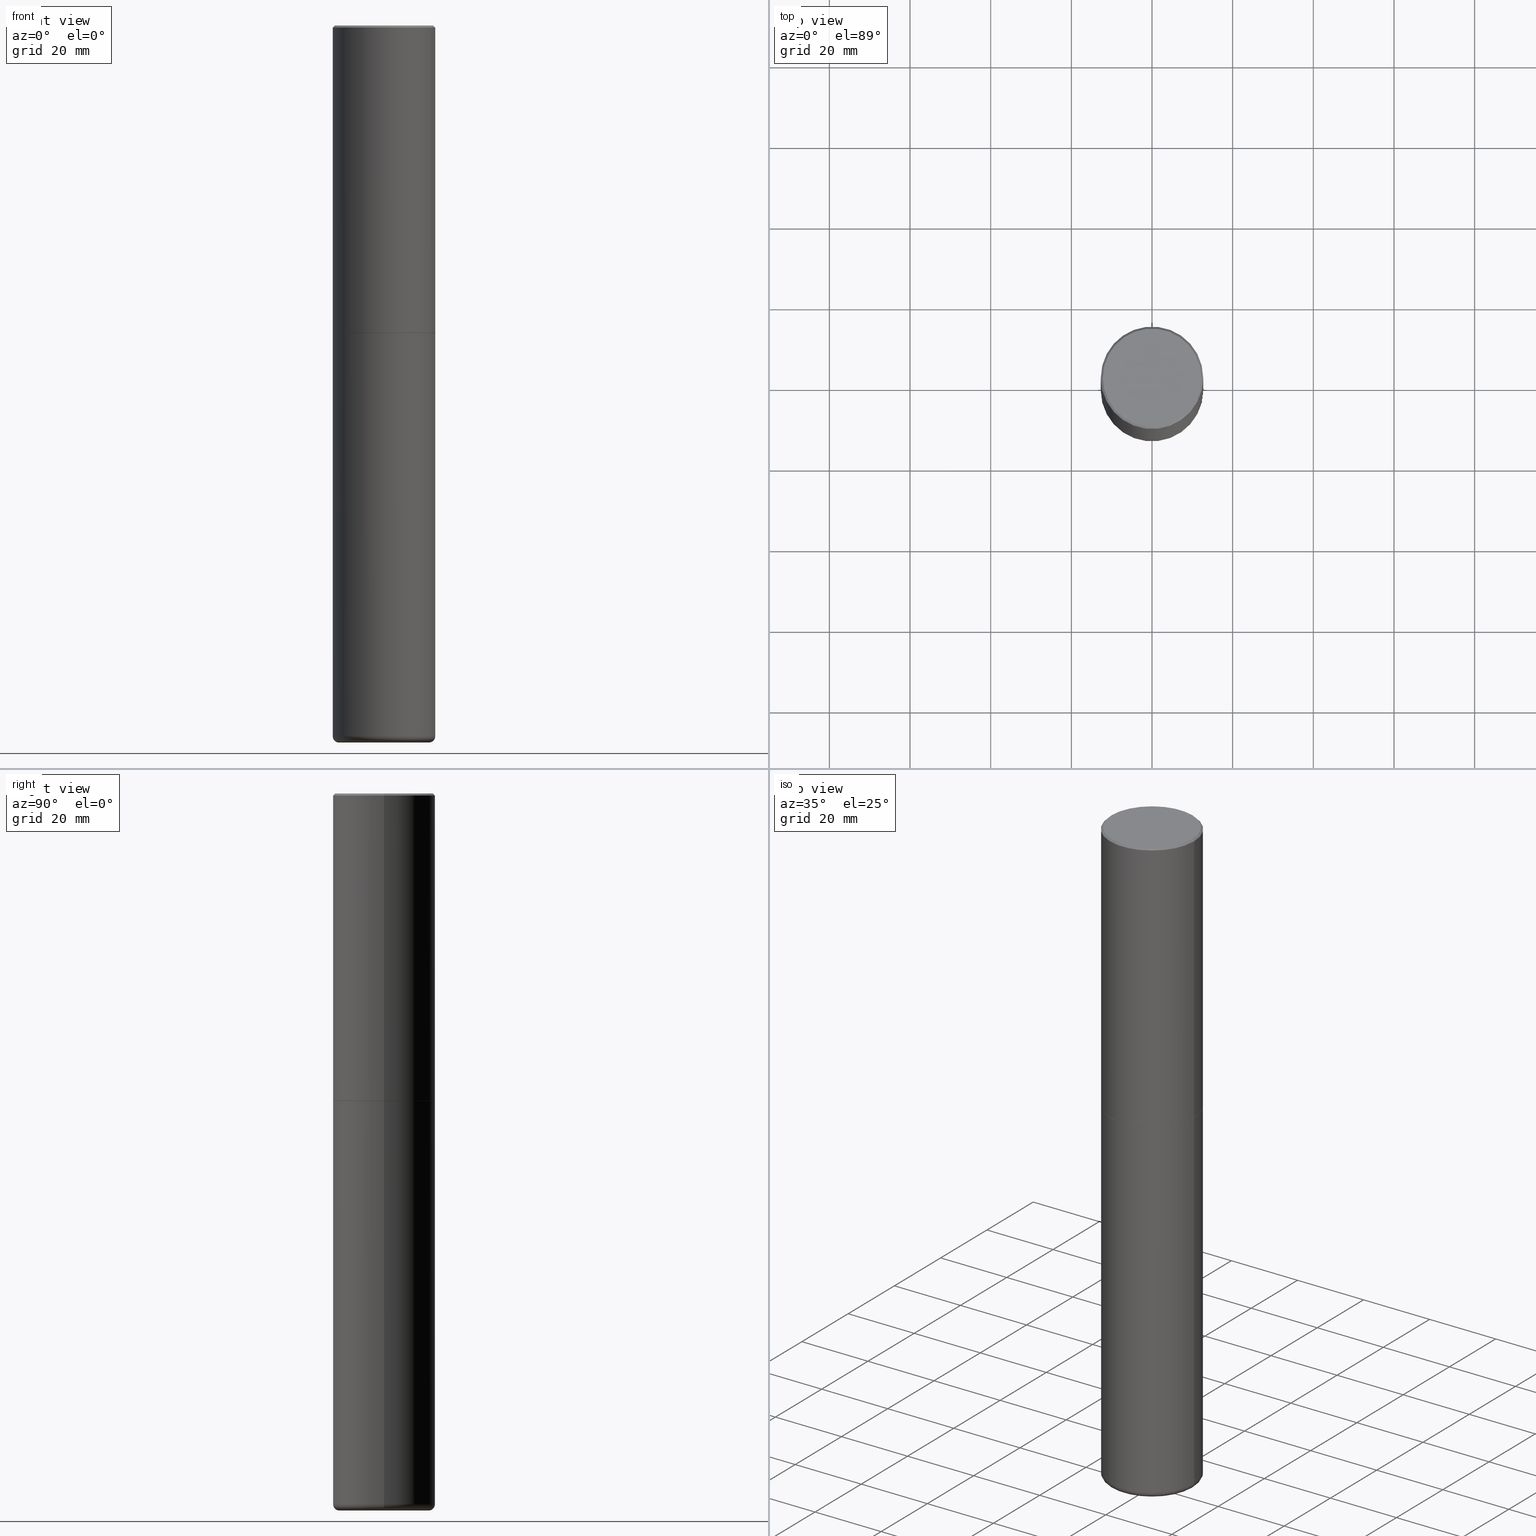
[diagram: canonical four-view strip — front | top / right | iso, engineering-drawing reading convention]
A machine part, canonical four-view strip (front | top / right | iso — engineering-drawing reading convention). The complete STEP part file that produces these views, byte-faithful:
ISO-10303-21;
HEADER;
FILE_DESCRIPTION (( 'STEP AP203' ),
    '1' );
FILE_NAME ('77332.STEP',
    '2024-03-06T17:09:13',
    ( '' ),
    ( '' ),
    'SwSTEP 2.0',
    'SolidWorks 2023',
    '' );
FILE_SCHEMA (( 'CONFIG_CONTROL_DESIGN' ));
ENDSEC;

DATA;
#1 = CARTESIAN_POINT ( 'NONE',  ( 0.000000000000000000, 0.000000000000000000, 0.000000000000000000 ) ) ;
#2 = CARTESIAN_POINT ( 'NONE',  ( 0.4400000000000000022, -2.730338406975338551E-14, -6.939999999999999503 ) ) ;
#3 = DIRECTION ( 'NONE',  ( -2.445468806185136597E-29, 3.491481338843145583E-15, 1.000000000000000000 ) ) ;
#4 = MANIFOLD_SOLID_BREP ( 'Body-Move/Copy2[2]', #98 ) ;
#5 = AXIS2_PLACEMENT_3D ( 'NONE', #243, #178, #279 ) ;
#6 = DIRECTION ( 'NONE',  ( 1.000000000000000000, -6.982962677686269077E-15, 0.000000000000000000 ) ) ;
#7 = LINE ( 'NONE', #264, #241 ) ;
#8 = PERSON_AND_ORGANIZATION ( #346, #357 ) ;
#9 = EDGE_CURVE ( 'NONE', #353, #107, #7, .T. ) ;
#10 = ORIENTED_EDGE ( 'NONE', *, *, #332, .T. ) ;
#11 = MANIFOLD_SOLID_BREP ( 'Body-Move/Copy2[1]', #207 ) ;
#12 = CARTESIAN_POINT ( 'NONE',  ( -0.5000000000000002220, -2.067816681277092470E-14, -6.939999999999999503 ) ) ;
#13 = ORIENTED_EDGE ( 'NONE', *, *, #153, .T. ) ;
#14 = CIRCLE ( 'NONE', #28, 0.5000000000000001110 ) ;
#15 = AXIS2_PLACEMENT_3D ( 'NONE', #329, #296, #230 ) ;
#16 = DIRECTION ( 'NONE',  ( 1.000000000000000000, -6.982962677686265922E-15, 0.000000000000000000 ) ) ;
#17 = ORIENTED_EDGE ( 'NONE', *, *, #292, .T. ) ;
#18 = APPROVAL_DATE_TIME ( #210, #125 ) ;
#19 = ORIENTED_EDGE ( 'NONE', *, *, #332, .F. ) ;
#20 = APPROVAL_STATUS ( 'not_yet_approved' ) ;
#21 = CIRCLE ( 'NONE', #71, 0.5000000000000000000 ) ;
#22 = APPROVAL_DATE_TIME ( #306, #186 ) ;
#23 = CIRCLE ( 'NONE', #326, 0.4400000000000000022 ) ;
#24 = DIRECTION ( 'NONE',  ( 1.000000000000000000, -6.982962677686269077E-15, 0.000000000000000000 ) ) ;
#25 = PLANE ( 'NONE',  #356 ) ;
#26 = ADVANCED_FACE ( 'NONE', ( #395 ), #373, .T. ) ;
#27 = DIRECTION ( 'NONE',  ( 1.000000000000000000, -6.982962677686266711E-15, 4.876176775795935793E-29 ) ) ;
#28 = AXIS2_PLACEMENT_3D ( 'NONE', #211, #408, #248 ) ;
#29 = AXIS2_PLACEMENT_3D ( 'NONE', #1, #156, #347 ) ;
#30 = LINE ( 'NONE', #161, #276 ) ;
#31 = CARTESIAN_POINT ( 'NONE',  ( 7.336406418555408669E-29, -1.047444401652943478E-14, -2.999999999999999556 ) ) ;
#32 = EDGE_LOOP ( 'NONE', ( #236, #17, #322, #328 ) ) ;
#33 = CARTESIAN_POINT ( 'NONE',  ( 0.4989999999999999991, -1.395894239269488369E-14, -2.999999999999999556 ) ) ;
#34 = CIRCLE ( 'NONE', #320, 0.5000000000000000000 ) ;
#35 = CARTESIAN_POINT ( 'NONE',  ( -0.5000000000000003331, -1.717677402183223054E-15, -2.999000000000000110 ) ) ;
#36 = DIRECTION ( 'NONE',  ( -2.445468806185136597E-29, 3.491481338843145583E-15, 1.000000000000000000 ) ) ;
#37 = ORIENTED_EDGE ( 'NONE', *, *, #9, .T. ) ;
#38 = CIRCLE ( 'NONE', #146, 0.06000000000000051820 ) ;
#39 = ADVANCED_FACE ( 'NONE', ( #307 ), #311, .T. ) ;
#40 = DIRECTION ( 'NONE',  ( 1.000000000000000000, -6.982962677686269077E-15, 0.000000000000000000 ) ) ;
#41 = ORIENTED_EDGE ( 'NONE', *, *, #61, .T. ) ;
#42 = DIRECTION ( 'NONE',  ( -2.445468806185136877E-29, 3.491481338843145188E-15, 1.000000000000000000 ) ) ;
#43 = CIRCLE ( 'NONE', #191, 0.5000000000000003331 ) ;
#44 = PERSON_AND_ORGANIZATION ( #346, #357 ) ;
#45 = ORIENTED_EDGE ( 'NONE', *, *, #202, .F. ) ;
#46 = PERSON_AND_ORGANIZATION ( #346, #357 ) ;
#47 = CARTESIAN_POINT ( 'NONE',  ( -2.922783960138615261E-45, 4.172960877065252270E-31, 1.195183497228115035E-16 ) ) ;
#48 = PERSON_AND_ORGANIZATION ( #346, #357 ) ;
#49 = APPROVAL_ROLE ( '' ) ;
#50 = CC_DESIGN_PERSON_AND_ORGANIZATION_ASSIGNMENT ( #48, #108, ( #254 ) ) ;
#51 = CONICAL_SURFACE ( 'NONE', #162, 0.5000000000000001110, 0.7853981633974458365 ) ;
#52 = CARTESIAN_POINT ( 'NONE',  ( 0.5000000000000002220, -3.491481338843134933E-15, 2.438088387897969017E-29 ) ) ;
#53 = DIRECTION ( 'NONE',  ( 1.000000000000000000, -6.982962677686266711E-15, 4.876176775795935793E-29 ) ) ;
#54 = CARTESIAN_POINT ( 'NONE',  ( 4.890937612370299433E-31, -6.982962677686328587E-17, -0.02000000000000010797 ) ) ;
#55 = AXIS2_PLACEMENT_3D ( 'NONE', #102, #201, #109 ) ;
#56 = CC_DESIGN_APPROVAL ( #125, ( #254 ) ) ;
#57 = CARTESIAN_POINT ( 'NONE',  ( 0.5000000000000002220, -2.772236183041456530E-14, -6.939999999999999503 ) ) ;
#58 = PRODUCT_DEFINITION_SHAPE ( 'NONE', 'NONE',  #254 ) ;
#59 = ORIENTED_EDGE ( 'NONE', *, *, #202, .T. ) ;
#60 = CARTESIAN_POINT ( 'NONE',  ( -0.5000000000000001110, 3.421651712066270452E-15, -0.02000000000000010797 ) ) ;
#61 = EDGE_CURVE ( 'NONE', #131, #261, #177, .T. ) ;
#62 = AXIS2_PLACEMENT_3D ( 'NONE', #111, #142, #53 ) ;
#63 = ORIENTED_EDGE ( 'NONE', *, *, #68, .T. ) ;
#64 = CARTESIAN_POINT ( 'NONE',  ( 7.336406418555408669E-29, -1.047444401652943478E-14, -2.999999999999999556 ) ) ;
#65 = VERTEX_POINT ( 'NONE', #145 ) ;
#66 = CARTESIAN_POINT ( 'NONE',  ( 1.711828164329595618E-28, -2.444036937190202184E-14, -7.000000000000000888 ) ) ;
#67 = EDGE_LOOP ( 'NONE', ( #231, #365 ) ) ;
#68 = EDGE_CURVE ( 'NONE', #192, #131, #84, .T. ) ;
#69 = ORIENTED_EDGE ( 'NONE', *, *, #280, .F. ) ;
#70 = AXIS2_PLACEMENT_3D ( 'NONE', #412, #240, #80 ) ;
#71 = AXIS2_PLACEMENT_3D ( 'NONE', #127, #3, #318 ) ;
#72 = PERSON_AND_ORGANIZATION_ROLE ( 'design_owner' ) ;
#73 = ORIENTED_EDGE ( 'NONE', *, *, #280, .T. ) ;
#74 = DIRECTION ( 'NONE',  ( -2.445468806185136597E-29, 3.491481338843145583E-15, 1.000000000000000000 ) ) ;
#75 = ORIENTED_EDGE ( 'NONE', *, *, #136, .F. ) ;
#76 = ADVANCED_FACE ( 'NONE', ( #283 ), #86, .F. ) ;
#77 = ORIENTED_EDGE ( 'NONE', *, *, #292, .F. ) ;
#78 = CIRCLE ( 'NONE', #5, 0.5000000000000001110 ) ;
#79 = COORDINATED_UNIVERSAL_TIME_OFFSET ( 5, 0, .BEHIND. ) ;
#80 = DIRECTION ( 'NONE',  ( 1.000000000000000000, -6.982962677686269077E-15, 0.000000000000000000 ) ) ;
#81 = COORDINATED_UNIVERSAL_TIME_OFFSET ( 5, 0, .BEHIND. ) ;
#82 = FACE_OUTER_BOUND ( 'NONE', #257, .T. ) ;
#83 = ADVANCED_FACE ( 'NONE', ( #82 ), #160, .T. ) ;
#84 = CIRCLE ( 'NONE', #70, 0.4989999999999999991 ) ;
#85 = AXIS2_PLACEMENT_3D ( 'NONE', #403, #165, #362 ) ;
#86 = PLANE ( 'NONE',  #407 ) ;
#87 = CARTESIAN_POINT ( 'NONE',  ( 7.333960949749225308E-29, -1.047095253519059177E-14, -2.999000000000000110 ) ) ;
#88 = ORIENTED_EDGE ( 'NONE', *, *, #158, .T. ) ;
#89 = DIRECTION ( 'NONE',  ( -2.445468806185136597E-29, 3.491481338843145583E-15, 1.000000000000000000 ) ) ;
#90 = AXIS2_PLACEMENT_3D ( 'NONE', #219, #383, #123 ) ;
#91 = VECTOR ( 'NONE', #189, 39.37007874015748143 ) ;
#92 = ORIENTED_EDGE ( 'NONE', *, *, #153, .F. ) ;
#93 = FACE_OUTER_BOUND ( 'NONE', #233, .T. ) ;
#94 = ORIENTED_EDGE ( 'NONE', *, *, #359, .T. ) ;
#95 = EDGE_CURVE ( 'NONE', #65, #269, #343, .T. ) ;
#96 = CARTESIAN_POINT ( 'NONE',  ( 1.711828164329595618E-28, -2.444036937190202184E-14, -7.000000000000000888 ) ) ;
#97 = FACE_OUTER_BOUND ( 'NONE', #355, .T. ) ;
#98 = CLOSED_SHELL ( 'NONE', ( #366, #245, #323, #26, #221, #83, #338, #176 ) ) ;
#99 = AXIS2_PLACEMENT_3D ( 'NONE', #286, #163, #126 ) ;
#100 = DIRECTION ( 'NONE',  ( 1.000000000000000000, -6.982962677686266711E-15, 4.874852205035277589E-29 ) ) ;
#101 = CARTESIAN_POINT ( 'NONE',  ( -2.922783960138615261E-45, 4.172960877065252270E-31, 1.195183497228115035E-16 ) ) ;
#102 = CARTESIAN_POINT ( 'NONE',  ( 4.890937612370299433E-31, -6.982962677686328587E-17, -0.02000000000000010797 ) ) ;
#103 = APPLICATION_PROTOCOL_DEFINITION ( 'international standard', 'config_control_design', 1994, #255 ) ;
#104 = ORIENTED_EDGE ( 'NONE', *, *, #384, .F. ) ;
#105 = DESIGN_CONTEXT ( 'detailed design', #310, 'design' ) ;
#106 = CARTESIAN_POINT ( 'NONE',  ( 0.5000000000000001110, -3.500078625662629868E-15, -0.02000000000000010797 ) ) ;
#107 = VERTEX_POINT ( 'NONE', #151 ) ;
#108 = PERSON_AND_ORGANIZATION_ROLE ( 'creator' ) ;
#109 = DIRECTION ( 'NONE',  ( -1.000000000000000000, 6.982962677686265922E-15, 0.000000000000000000 ) ) ;
#110 = AXIS2_PLACEMENT_3D ( 'NONE', #101, #130, #100 ) ;
#111 = CARTESIAN_POINT ( 'NONE',  ( 0.000000000000000000, 0.000000000000000000, 0.000000000000000000 ) ) ;
#112 = CC_DESIGN_PERSON_AND_ORGANIZATION_ASSIGNMENT ( #46, #341, ( #385 ) ) ;
#113 = SECURITY_CLASSIFICATION_LEVEL ( 'unclassified' ) ;
#114 = CARTESIAN_POINT ( 'NONE',  ( 0.4989999999999999991, -1.395894239269488369E-14, -2.999999999999999556 ) ) ;
#115 = PERSON_AND_ORGANIZATION_ROLE ( 'creator' ) ;
#116 = DIRECTION ( 'NONE',  ( -2.445468806185136597E-29, 3.491481338843145583E-15, 1.000000000000000000 ) ) ;
#117 = AXIS2_PLACEMENT_3D ( 'NONE', #396, #259, #6 ) ;
#118 = DIRECTION ( 'NONE',  ( 1.000000000000000000, -6.982962677686266711E-15, 4.874852205035277589E-29 ) ) ;
#119 = PRODUCT_RELATED_PRODUCT_CATEGORY ( 'detail', '', ( #410 ) ) ;
#120 = CYLINDRICAL_SURFACE ( 'NONE', #90, 0.5000000000000000000 ) ;
#121 = CARTESIAN_POINT ( 'NONE',  ( 1.697155351492484915E-28, -2.423088049157142879E-14, -6.939999999999999503 ) ) ;
#122 = EDGE_LOOP ( 'NONE', ( #63, #41, #204, #325 ) ) ;
#123 = DIRECTION ( 'NONE',  ( 1.000000000000000000, -6.982962677686266711E-15, 4.876176775795935793E-29 ) ) ;
#124 = CIRCLE ( 'NONE', #297, 0.5000000000000003331 ) ;
#125 = APPROVAL ( #20, 'UNSPECIFIED' ) ;
#126 = DIRECTION ( 'NONE',  ( 1.000000000000000000, -6.982962677686270655E-15, 4.883557194083114583E-29 ) ) ;
#127 = CARTESIAN_POINT ( 'NONE',  ( 7.336406418555408669E-29, -1.047444401652943478E-14, -2.999999999999999556 ) ) ;
#128 = APPROVAL ( #174, 'UNSPECIFIED' ) ;
#129 = CONICAL_SURFACE ( 'NONE', #184, 0.4989999999999999991, 0.7853981633977213939 ) ;
#130 = DIRECTION ( 'NONE',  ( -2.445468806185136597E-29, 3.491481338843145583E-15, 1.000000000000000000 ) ) ;
#131 = VERTEX_POINT ( 'NONE', #274 ) ;
#132 = ORIENTED_EDGE ( 'NONE', *, *, #158, .F. ) ;
#133 = CARTESIAN_POINT ( 'NONE',  ( 7.333960949749225308E-29, -1.047095253519059177E-14, -2.999000000000000110 ) ) ;
#134 = EDGE_LOOP ( 'NONE', ( #10, #37, #69, #298 ) ) ;
#135 = AXIS2_PLACEMENT_3D ( 'NONE', #340, #116, #24 ) ;
#136 = EDGE_CURVE ( 'NONE', #235, #393, #14, .T. ) ;
#137 =( GEOMETRIC_REPRESENTATION_CONTEXT ( 3 ) GLOBAL_UNCERTAINTY_ASSIGNED_CONTEXT ( ( #138 ) ) GLOBAL_UNIT_ASSIGNED_CONTEXT ( ( #331, #237, #369 ) ) REPRESENTATION_CONTEXT ( 'NONE', 'WORKASPACE' ) );
#138 = UNCERTAINTY_MEASURE_WITH_UNIT (LENGTH_MEASURE( 1.000000000000000082E-05 ), #331, 'distance_accuracy_value', 'NONE');
#139 = CARTESIAN_POINT ( 'NONE',  ( 0.4400000000000000022, -2.751287295008397541E-14, -7.000000000000000888 ) ) ;
#140 = ORIENTED_EDGE ( 'NONE', *, *, #95, .T. ) ;
#141 = COORDINATED_UNIVERSAL_TIME_OFFSET ( 5, 0, .BEHIND. ) ;
#142 = DIRECTION ( 'NONE',  ( -2.445468806185136597E-29, 3.491481338843145583E-15, 1.000000000000000000 ) ) ;
#143 = DATE_TIME_ROLE ( 'creation_date' ) ;
#144 = ADVANCED_FACE ( 'NONE', ( #218 ), #342, .T. ) ;
#145 = CARTESIAN_POINT ( 'NONE',  ( 0.4799999999999999267, -3.396558832296482099E-15, 1.195183497228351200E-16 ) ) ;
#146 = AXIS2_PLACEMENT_3D ( 'NONE', #2, #190, #321 ) ;
#147 = APPROVAL_PERSON_ORGANIZATION ( #215, #128, #212 ) ;
#148 = SHAPE_DEFINITION_REPRESENTATION ( #58, #371 ) ;
#149 = CARTESIAN_POINT ( 'NONE',  ( 4.978759091833445139E-29, -4.182485660431097497E-14, -7.000000000000000888 ) ) ;
#150 = PERSON_AND_ORGANIZATION ( #346, #357 ) ;
#151 = CARTESIAN_POINT ( 'NONE',  ( -0.5000000000000000000, -1.379994857524993085E-14, -2.999999999999999556 ) ) ;
#152 = DIRECTION ( 'NONE',  ( -1.000000000000000000, 6.982962677686265922E-15, -4.876176775795935793E-29 ) ) ;
#153 = EDGE_CURVE ( 'NONE', #361, #393, #312, .T. ) ;
#154 = CC_DESIGN_APPROVAL ( #186, ( #385 ) ) ;
#155 = LINE ( 'NONE', #352, #91 ) ;
#156 = DIRECTION ( 'NONE',  ( -2.445468806185136597E-29, 3.491481338843145583E-15, 1.000000000000000000 ) ) ;
#157 = DIRECTION ( 'NONE',  ( -2.438088387897960049E-29, 3.491481338843145188E-15, 1.000000000000000000 ) ) ;
#158 = EDGE_CURVE ( 'NONE', #353, #305, #78, .T. ) ;
#159 = ORIENTED_EDGE ( 'NONE', *, *, #392, .F. ) ;
#160 = CONICAL_SURFACE ( 'NONE', #135, 0.4989999999999999991, 0.7853981633977213939 ) ;
#161 = CARTESIAN_POINT ( 'NONE',  ( 0.5000000000000000000, -3.491481338843133355E-15, 2.438088387897967896E-29 ) ) ;
#162 = AXIS2_PLACEMENT_3D ( 'NONE', #54, #416, #387 ) ;
#163 = DIRECTION ( 'NONE',  ( -2.445468806185136597E-29, 3.491481338843145583E-15, 1.000000000000000000 ) ) ;
#164 = DIMENSIONAL_EXPONENTS ( 1.000000000000000000, 0.000000000000000000, 0.000000000000000000, 0.000000000000000000, 0.000000000000000000, 0.000000000000000000, 0.000000000000000000 ) ;
#165 = DIRECTION ( 'NONE',  ( -2.445468806185136597E-29, 3.491481338843145583E-15, 1.000000000000000000 ) ) ;
#166 = ORIENTED_EDGE ( 'NONE', *, *, #234, .F. ) ;
#167 = AXIS2_PLACEMENT_3D ( 'NONE', #121, #89, #187 ) ;
#168 = CARTESIAN_POINT ( 'NONE',  ( 0.000000000000000000, 0.000000000000000000, 0.000000000000000000 ) ) ;
#169 = EDGE_LOOP ( 'NONE', ( #370, #88, #288, #166 ) ) ;
#170 = CARTESIAN_POINT ( 'NONE',  ( -0.5000000000000002220, 3.552713678800502507E-15, -2.459467545127454012E-29 ) ) ;
#171 = EDGE_CURVE ( 'NONE', #192, #361, #409, .T. ) ;
#172 = VERTEX_POINT ( 'NONE', #247 ) ;
#173 = LOCAL_TIME ( 12, 9, 13.00000000000000000, #81 ) ;
#174 = APPROVAL_STATUS ( 'not_yet_approved' ) ;
#175 = VERTEX_POINT ( 'NONE', #181 ) ;
#176 = ADVANCED_FACE ( 'NONE', ( #309 ), #25, .F. ) ;
#177 = LINE ( 'NONE', #377, #213 ) ;
#178 = DIRECTION ( 'NONE',  ( -2.445468806185136597E-29, 3.491481338843145583E-15, 1.000000000000000000 ) ) ;
#179 = AXIS2_PLACEMENT_3D ( 'NONE', #31, #157, #289 ) ;
#180 = DATE_AND_TIME ( #246, #200 ) ;
#181 = CARTESIAN_POINT ( 'NONE',  ( -0.4400000000000000022, -2.099607407366424990E-14, -7.000000000000000888 ) ) ;
#182 = CC_DESIGN_PERSON_AND_ORGANIZATION_ASSIGNMENT ( #150, #115, ( #385 ) ) ;
#183 = DIRECTION ( 'NONE',  ( -2.445468806185136877E-29, 3.491481338843145188E-15, 1.000000000000000000 ) ) ;
#184 = AXIS2_PLACEMENT_3D ( 'NONE', #401, #74, #40 ) ;
#185 = FACE_OUTER_BOUND ( 'NONE', #32, .T. ) ;
#186 = APPROVAL ( #273, 'UNSPECIFIED' ) ;
#187 = DIRECTION ( 'NONE',  ( 1.000000000000000000, -6.982962677686269077E-15, 0.000000000000000000 ) ) ;
#188 = EDGE_LOOP ( 'NONE', ( #402, #104 ) ) ;
#189 = DIRECTION ( 'NONE',  ( 0.7071067811865457964, -7.319954787623249734E-15, -0.7071067811865492381 ) ) ;
#190 = DIRECTION ( 'NONE',  ( -6.982962677686266711E-15, -1.000000000000000000, 3.491481338843145583E-15 ) ) ;
#191 = AXIS2_PLACEMENT_3D ( 'NONE', #133, #36, #270 ) ;
#192 = VERTEX_POINT ( 'NONE', #33 ) ;
#193 = DIRECTION ( 'NONE',  ( -2.445468806185136597E-29, 3.491481338843145583E-15, 1.000000000000000000 ) ) ;
#194 = ORIENTED_EDGE ( 'NONE', *, *, #345, .F. ) ;
#195 = CC_DESIGN_PERSON_AND_ORGANIZATION_ASSIGNMENT ( #333, #378, ( #390 ) ) ;
#196 = DIRECTION ( 'NONE',  ( -2.445468806185136597E-29, 3.491481338843145583E-15, 1.000000000000000000 ) ) ;
#197 = ORIENTED_EDGE ( 'NONE', *, *, #234, .T. ) ;
#198 = LENGTH_MEASURE_WITH_UNIT ( LENGTH_MEASURE( 0.02539999999999999897 ), #367 );
#199 = AXIS2_PLACEMENT_3D ( 'NONE', #96, #386, #253 ) ;
#200 = LOCAL_TIME ( 12, 9, 13.00000000000000000, #411 ) ;
#201 = DIRECTION ( 'NONE',  ( 2.445468806185136597E-29, -3.491481338843145583E-15, -1.000000000000000000 ) ) ;
#202 = EDGE_CURVE ( 'NONE', #368, #305, #38, .T. ) ;
#203 = APPLICATION_PROTOCOL_DEFINITION ( 'international standard', 'config_control_design', 1994, #310 ) ;
#204 = ORIENTED_EDGE ( 'NONE', *, *, #272, .F. ) ;
#205 = PERSON_AND_ORGANIZATION ( #346, #357 ) ;
#206 = ORIENTED_EDGE ( 'NONE', *, *, #376, .T. ) ;
#207 = CLOSED_SHELL ( 'NONE', ( #144, #263, #76, #313, #406, #39 ) ) ;
#208 = LOCAL_TIME ( 12, 9, 13.00000000000000000, #339 ) ;
#209 = DATE_TIME_ROLE ( 'classification_date' ) ;
#210 = DATE_AND_TIME ( #344, #173 ) ;
#211 = CARTESIAN_POINT ( 'NONE',  ( 4.890937612370299433E-31, -6.982962677686328587E-17, -0.02000000000000010797 ) ) ;
#212 = APPROVAL_ROLE ( '' ) ;
#213 = VECTOR ( 'NONE', #381, 39.37007874015748143 ) ;
#214 = TOROIDAL_SURFACE ( 'NONE', #99, 0.4400000000000000022, 0.06000000000000051820 ) ;
#215 = PERSON_AND_ORGANIZATION ( #346, #357 ) ;
#216 = EDGE_CURVE ( 'NONE', #368, #175, #295, .T. ) ;
#217 = DIRECTION ( 'NONE',  ( 2.438088387897960049E-29, -3.491481338843145188E-15, -1.000000000000000000 ) ) ;
#218 = FACE_OUTER_BOUND ( 'NONE', #134, .T. ) ;
#219 = CARTESIAN_POINT ( 'NONE',  ( 0.000000000000000000, 0.000000000000000000, 0.000000000000000000 ) ) ;
#220 = ORIENTED_EDGE ( 'NONE', *, *, #136, .T. ) ;
#221 = ADVANCED_FACE ( 'NONE', ( #93 ), #256, .T. ) ;
#222 = AXIS2_PLACEMENT_3D ( 'NONE', #149, #282, #152 ) ;
#223 = FACE_OUTER_BOUND ( 'NONE', #67, .T. ) ;
#224 = ORIENTED_EDGE ( 'NONE', *, *, #61, .F. ) ;
#225 = CARTESIAN_POINT ( 'NONE',  ( -0.5000000000000001110, 3.421651712066270452E-15, -0.02000000000000010797 ) ) ;
#226 = DIRECTION ( 'NONE',  ( -1.000000000000000000, 6.982962677686265922E-15, -4.876176775795935793E-29 ) ) ;
#227 = CYLINDRICAL_SURFACE ( 'NONE', #29, 0.5000000000000002220 ) ;
#228 = EDGE_CURVE ( 'NONE', #269, #235, #354, .T. ) ;
#229 = CIRCLE ( 'NONE', #380, 0.5000000000000001110 ) ;
#230 = DIRECTION ( 'NONE',  ( -1.000000000000000000, 7.105427357600994759E-15, 0.000000000000000000 ) ) ;
#231 = ORIENTED_EDGE ( 'NONE', *, *, #68, .F. ) ;
#232 = FACE_OUTER_BOUND ( 'NONE', #271, .T. ) ;
#233 = EDGE_LOOP ( 'NONE', ( #418, #238, #13, #75 ) ) ;
#234 = EDGE_CURVE ( 'NONE', #107, #172, #21, .T. ) ;
#235 = VERTEX_POINT ( 'NONE', #225 ) ;
#236 = ORIENTED_EDGE ( 'NONE', *, *, #95, .F. ) ;
#237 =( NAMED_UNIT ( * ) PLANE_ANGLE_UNIT ( ) SI_UNIT ( $, .RADIAN. ) );
#238 = ORIENTED_EDGE ( 'NONE', *, *, #392, .T. ) ;
#239 = CALENDAR_DATE ( 2024, 6, 3 ) ;
#240 = DIRECTION ( 'NONE',  ( -2.445468806185136597E-29, 3.491481338843145583E-15, 1.000000000000000000 ) ) ;
#241 = VECTOR ( 'NONE', #42, 39.37007874015748143 ) ;
#242 = AXIS2_PLACEMENT_3D ( 'NONE', #168, #294, #391 ) ;
#243 = CARTESIAN_POINT ( 'NONE',  ( 1.697155351492484915E-28, -2.423088049157142879E-14, -6.939999999999999503 ) ) ;
#244 = DIRECTION ( 'NONE',  ( 0.7071067811867406405, -2.468850131084279700E-15, 0.7071067811863543939 ) ) ;
#245 = ADVANCED_FACE ( 'NONE', ( #97 ), #227, .T. ) ;
#246 = CALENDAR_DATE ( 2024, 6, 3 ) ;
#247 = CARTESIAN_POINT ( 'NONE',  ( 0.5000000000000000000, -1.396592535537256813E-14, -2.999999999999999556 ) ) ;
#248 = DIRECTION ( 'NONE',  ( 1.000000000000000000, -6.982962677686265922E-15, 0.000000000000000000 ) ) ;
#249 = DIRECTION ( 'NONE',  ( -0.7071067811865457964, 2.468850131082238917E-15, -0.7071067811865492381 ) ) ;
#250 = DIRECTION ( 'NONE',  ( -2.445468806185136877E-29, 3.491481338843145188E-15, 1.000000000000000000 ) ) ;
#251 = APPROVAL_PERSON_ORGANIZATION ( #44, #125, #336 ) ;
#252 = DIRECTION ( 'NONE',  ( 2.438088387897960049E-29, -3.491481338843145188E-15, -1.000000000000000000 ) ) ;
#253 = DIRECTION ( 'NONE',  ( 1.000000000000000000, -6.982962677686262766E-15, 0.000000000000000000 ) ) ;
#254 = PRODUCT_DEFINITION ( 'UNKNOWN', '', #385, #105 ) ;
#255 = APPLICATION_CONTEXT ( 'configuration controlled 3d designs of mechanical parts and assemblies' ) ;
#256 = CYLINDRICAL_SURFACE ( 'NONE', #275, 0.5000000000000002220 ) ;
#257 = EDGE_LOOP ( 'NONE', ( #224, #404, #363, #159 ) ) ;
#258 = VECTOR ( 'NONE', #183, 39.37007874015748143 ) ;
#259 = DIRECTION ( 'NONE',  ( -2.445468806185136597E-29, 3.491481338843145583E-15, 1.000000000000000000 ) ) ;
#260 = CIRCLE ( 'NONE', #15, 0.06000000000000051820 ) ;
#261 = VERTEX_POINT ( 'NONE', #35 ) ;
#262 = FACE_OUTER_BOUND ( 'NONE', #122, .T. ) ;
#263 = ADVANCED_FACE ( 'NONE', ( #287 ), #214, .T. ) ;
#264 = CARTESIAN_POINT ( 'NONE',  ( -0.5000000000000000000, 3.552713678800500929E-15, -2.459467545127452891E-29 ) ) ;
#265 = DIRECTION ( 'NONE',  ( -2.445468806185136877E-29, 3.491481338843145188E-15, 1.000000000000000000 ) ) ;
#266 = ORIENTED_EDGE ( 'NONE', *, *, #272, .T. ) ;
#267 = DIRECTION ( 'NONE',  ( 1.000000000000000000, -6.982962677686262766E-15, 0.000000000000000000 ) ) ;
#268 = CIRCLE ( 'NONE', #167, 0.5000000000000001110 ) ;
#269 = VERTEX_POINT ( 'NONE', #389 ) ;
#270 = DIRECTION ( 'NONE',  ( 1.000000000000000000, -6.982962677686265922E-15, 0.000000000000000000 ) ) ;
#271 = EDGE_LOOP ( 'NONE', ( #317, #335, #59, #132 ) ) ;
#272 = EDGE_CURVE ( 'NONE', #361, #261, #124, .T. ) ;
#273 = APPROVAL_STATUS ( 'not_yet_approved' ) ;
#274 = CARTESIAN_POINT ( 'NONE',  ( -0.4989999999999999991, -6.923537310738311664E-15, -2.999999999999999556 ) ) ;
#275 = AXIS2_PLACEMENT_3D ( 'NONE', #315, #382, #27 ) ;
#276 = VECTOR ( 'NONE', #250, 39.37007874015748143 ) ;
#277 = APPROVAL_PERSON_ORGANIZATION ( #205, #186, #49 ) ;
#278 = DATE_AND_TIME ( #239, #284 ) ;
#279 = DIRECTION ( 'NONE',  ( 1.000000000000000000, -6.982962677686269077E-15, 0.000000000000000000 ) ) ;
#280 = EDGE_CURVE ( 'NONE', #172, #107, #34, .T. ) ;
#281 = DATE_AND_TIME ( #405, #208 ) ;
#282 = DIRECTION ( 'NONE',  ( 2.438088387897960049E-29, -3.491481338843145188E-15, -1.000000000000000000 ) ) ;
#283 = FACE_OUTER_BOUND ( 'NONE', #303, .T. ) ;
#284 = LOCAL_TIME ( 12, 9, 13.00000000000000000, #141 ) ;
#285 = CC_DESIGN_DATE_AND_TIME_ASSIGNMENT ( #278, #143, ( #254 ) ) ;
#286 = CARTESIAN_POINT ( 'NONE',  ( 1.697155351492484915E-28, -2.423088049157142879E-14, -6.939999999999999503 ) ) ;
#287 = FACE_OUTER_BOUND ( 'NONE', #330, .T. ) ;
#288 = ORIENTED_EDGE ( 'NONE', *, *, #304, .T. ) ;
#289 = DIRECTION ( 'NONE',  ( 1.000000000000000000, -6.982962677686265922E-15, 4.876176775795935793E-29 ) ) ;
#290 = ORIENTED_EDGE ( 'NONE', *, *, #351, .F. ) ;
#291 = FACE_OUTER_BOUND ( 'NONE', #169, .T. ) ;
#292 = EDGE_CURVE ( 'NONE', #65, #393, #155, .T. ) ;
#293 = DIRECTION ( 'NONE',  ( -2.445468806185136597E-29, 3.491481338843145583E-15, 1.000000000000000000 ) ) ;
#294 = DIRECTION ( 'NONE',  ( 0.000000000000000000, 0.000000000000000000, 1.000000000000000000 ) ) ;
#295 = CIRCLE ( 'NONE', #199, 0.4400000000000000022 ) ;
#296 = DIRECTION ( 'NONE',  ( 7.105427357601001859E-15, 1.000000000000000000, -3.491481338843145583E-15 ) ) ;
#297 = AXIS2_PLACEMENT_3D ( 'NONE', #87, #293, #358 ) ;
#298 = ORIENTED_EDGE ( 'NONE', *, *, #304, .F. ) ;
#299 = EDGE_LOOP ( 'NONE', ( #319, #140 ) ) ;
#300 = CARTESIAN_POINT ( 'NONE',  ( 4.890937612370299433E-31, -6.982962677686328587E-17, -0.02000000000000010797 ) ) ;
#301 = EDGE_LOOP ( 'NONE', ( #77, #290, #397, #220 ) ) ;
#302 = VECTOR ( 'NONE', #244, 39.37007874015748143 ) ;
#303 = EDGE_LOOP ( 'NONE', ( #73, #197 ) ) ;
#304 = EDGE_CURVE ( 'NONE', #305, #172, #30, .T. ) ;
#305 = VERTEX_POINT ( 'NONE', #57 ) ;
#306 = DATE_AND_TIME ( #372, #334 ) ;
#307 = FACE_OUTER_BOUND ( 'NONE', #188, .T. ) ;
#308 = CC_DESIGN_APPROVAL ( #128, ( #390 ) ) ;
#309 = FACE_OUTER_BOUND ( 'NONE', #299, .T. ) ;
#310 = APPLICATION_CONTEXT ( 'configuration controlled 3d designs of mechanical parts and assemblies' ) ;
#311 = PLANE ( 'NONE',  #222 ) ;
#312 = LINE ( 'NONE', #52, #258 ) ;
#313 = ADVANCED_FACE ( 'NONE', ( #291 ), #120, .T. ) ;
#314 = CIRCLE ( 'NONE', #110, 0.4799999999999999267 ) ;
#315 = CARTESIAN_POINT ( 'NONE',  ( 0.000000000000000000, 0.000000000000000000, 0.000000000000000000 ) ) ;
#316 = PLANE ( 'NONE',  #179 ) ;
#317 = ORIENTED_EDGE ( 'NONE', *, *, #359, .F. ) ;
#318 = DIRECTION ( 'NONE',  ( 1.000000000000000000, -6.982962677686266711E-15, 0.000000000000000000 ) ) ;
#319 = ORIENTED_EDGE ( 'NONE', *, *, #351, .T. ) ;
#320 = AXIS2_PLACEMENT_3D ( 'NONE', #64, #193, #415 ) ;
#321 = DIRECTION ( 'NONE',  ( 1.000000000000000000, -6.982962677686273021E-15, 0.000000000000000000 ) ) ;
#322 = ORIENTED_EDGE ( 'NONE', *, *, #345, .T. ) ;
#323 = ADVANCED_FACE ( 'NONE', ( #185 ), #51, .T. ) ;
#324 = DIRECTION ( 'NONE',  ( -2.445468806185136597E-29, 3.491481338843145583E-15, 1.000000000000000000 ) ) ;
#325 = ORIENTED_EDGE ( 'NONE', *, *, #171, .F. ) ;
#326 = AXIS2_PLACEMENT_3D ( 'NONE', #66, #324, #267 ) ;
#327 = MECHANICAL_CONTEXT ( 'NONE', #255, 'mechanical' ) ;
#328 = ORIENTED_EDGE ( 'NONE', *, *, #228, .F. ) ;
#329 = CARTESIAN_POINT ( 'NONE',  ( -0.4400000000000000022, -2.110449245422698835E-14, -6.939999999999999503 ) ) ;
#330 = EDGE_LOOP ( 'NONE', ( #388, #94, #19, #45 ) ) ;
#331 =( CONVERSION_BASED_UNIT ( 'INCH', #198 ) LENGTH_UNIT ( ) NAMED_UNIT ( #164 ) );
#332 = EDGE_CURVE ( 'NONE', #305, #353, #268, .T. ) ;
#333 = PERSON_AND_ORGANIZATION ( #346, #357 ) ;
#334 = LOCAL_TIME ( 12, 9, 13.00000000000000000, #79 ) ;
#335 = ORIENTED_EDGE ( 'NONE', *, *, #384, .T. ) ;
#336 = APPROVAL_ROLE ( '' ) ;
#337 = DIRECTION ( 'NONE',  ( -2.445468806185136597E-29, 3.491481338843145583E-15, 1.000000000000000000 ) ) ;
#338 = ADVANCED_FACE ( 'NONE', ( #223 ), #316, .F. ) ;
#339 = COORDINATED_UNIVERSAL_TIME_OFFSET ( 5, 0, .BEHIND. ) ;
#340 = CARTESIAN_POINT ( 'NONE',  ( 7.336406418555408669E-29, -1.047444401652943478E-14, -2.999999999999999556 ) ) ;
#341 = PERSON_AND_ORGANIZATION_ROLE ( 'design_supplier' ) ;
#342 = CYLINDRICAL_SURFACE ( 'NONE', #62, 0.5000000000000000000 ) ;
#343 = CIRCLE ( 'NONE', #399, 0.4799999999999999267 ) ;
#344 = CALENDAR_DATE ( 2024, 6, 3 ) ;
#345 = EDGE_CURVE ( 'NONE', #393, #235, #229, .T. ) ;
#346 = PERSON ( 'UNSPECIFIED', 'UNSPECIFIED', 'UNSPECIFIED', ('UNSPECIFIED'), ('UNSPECIFIED'), ('UNSPECIFIED') ) ;
#347 = DIRECTION ( 'NONE',  ( 1.000000000000000000, -6.982962677686266711E-15, 4.876176775795935793E-29 ) ) ;
#348 = VECTOR ( 'NONE', #249, 39.37007874015748143 ) ;
#349 = CIRCLE ( 'NONE', #117, 0.4989999999999999991 ) ;
#350 = CARTESIAN_POINT ( 'NONE',  ( 3.351822085289407153E-15, 0.4799999999999999267, -1.616151867783303914E-15 ) ) ;
#351 = EDGE_CURVE ( 'NONE', #269, #65, #314, .T. ) ;
#352 = CARTESIAN_POINT ( 'NONE',  ( 0.5000000000000001110, -3.500078625662629868E-15, -0.02000000000000010797 ) ) ;
#353 = VERTEX_POINT ( 'NONE', #12 ) ;
#354 = LINE ( 'NONE', #60, #348 ) ;
#355 = EDGE_LOOP ( 'NONE', ( #266, #206, #194, #92 ) ) ;
#356 = AXIS2_PLACEMENT_3D ( 'NONE', #350, #252, #226 ) ;
#357 = ORGANIZATION ( 'UNSPECIFIED', 'UNSPECIFIED', '' ) ;
#358 = DIRECTION ( 'NONE',  ( 1.000000000000000000, -6.982962677686265922E-15, 0.000000000000000000 ) ) ;
#359 = EDGE_CURVE ( 'NONE', #175, #353, #260, .T. ) ;
#360 = CARTESIAN_POINT ( 'NONE',  ( 0.5000000000000003331, -1.396243387403372828E-14, -2.999000000000000110 ) ) ;
#361 = VERTEX_POINT ( 'NONE', #360 ) ;
#362 = DIRECTION ( 'NONE',  ( 1.000000000000000000, -6.982962677686270655E-15, 4.883557194083114583E-29 ) ) ;
#363 = ORIENTED_EDGE ( 'NONE', *, *, #171, .T. ) ;
#364 = CC_DESIGN_SECURITY_CLASSIFICATION ( #390, ( #385 ) ) ;
#365 = ORIENTED_EDGE ( 'NONE', *, *, #413, .F. ) ;
#366 = ADVANCED_FACE ( 'NONE', ( #262 ), #129, .T. ) ;
#367 =( LENGTH_UNIT ( ) NAMED_UNIT ( * ) SI_UNIT ( $, .METRE. ) );
#368 = VERTEX_POINT ( 'NONE', #139 ) ;
#369 =( NAMED_UNIT ( * ) SI_UNIT ( $, .STERADIAN. ) SOLID_ANGLE_UNIT ( ) );
#370 = ORIENTED_EDGE ( 'NONE', *, *, #9, .F. ) ;
#371 = ADVANCED_BREP_SHAPE_REPRESENTATION ( '77332', ( #11, #4, #242 ), #137 ) ;
#372 = CALENDAR_DATE ( 2024, 6, 3 ) ;
#373 = CONICAL_SURFACE ( 'NONE', #55, 0.5000000000000001110, 0.7853981633974458365 ) ;
#374 = VECTOR ( 'NONE', #265, 39.37007874015748143 ) ;
#375 = CARTESIAN_POINT ( 'NONE',  ( 7.336406418555408669E-29, -1.047444401652943478E-14, -2.999999999999999556 ) ) ;
#376 = EDGE_CURVE ( 'NONE', #261, #235, #394, .T. ) ;
#377 = CARTESIAN_POINT ( 'NONE',  ( -0.4989999999999999991, -6.928835765086534855E-15, -2.999999999999999556 ) ) ;
#378 = PERSON_AND_ORGANIZATION_ROLE ( 'classification_officer' ) ;
#379 = APPROVAL_DATE_TIME ( #180, #128 ) ;
#380 = AXIS2_PLACEMENT_3D ( 'NONE', #300, #196, #16 ) ;
#381 = DIRECTION ( 'NONE',  ( -0.7071067811867406405, 7.493145998871051513E-15, 0.7071067811863543939 ) ) ;
#382 = DIRECTION ( 'NONE',  ( -2.445468806185136597E-29, 3.491481338843145583E-15, 1.000000000000000000 ) ) ;
#383 = DIRECTION ( 'NONE',  ( -2.445468806185136597E-29, 3.491481338843145583E-15, 1.000000000000000000 ) ) ;
#384 = EDGE_CURVE ( 'NONE', #175, #368, #23, .T. ) ;
#385 = PRODUCT_DEFINITION_FORMATION_WITH_SPECIFIED_SOURCE ( 'ANY', '', #410, .NOT_KNOWN. ) ;
#386 = DIRECTION ( 'NONE',  ( -2.445468806185136597E-29, 3.491481338843145583E-15, 1.000000000000000000 ) ) ;
#387 = DIRECTION ( 'NONE',  ( -1.000000000000000000, 6.982962677686265922E-15, 0.000000000000000000 ) ) ;
#388 = ORIENTED_EDGE ( 'NONE', *, *, #216, .T. ) ;
#389 = CARTESIAN_POINT ( 'NONE',  ( -0.4799999999999999267, 3.386736898677839197E-15, 1.195183497227879609E-16 ) ) ;
#390 = SECURITY_CLASSIFICATION ( '', '', #113 ) ;
#391 = DIRECTION ( 'NONE',  ( 1.000000000000000000, 0.000000000000000000, 0.000000000000000000 ) ) ;
#392 = EDGE_CURVE ( 'NONE', #261, #361, #43, .T. ) ;
#393 = VERTEX_POINT ( 'NONE', #106 ) ;
#394 = LINE ( 'NONE', #170, #374 ) ;
#395 = FACE_OUTER_BOUND ( 'NONE', #301, .T. ) ;
#396 = CARTESIAN_POINT ( 'NONE',  ( 7.336406418555408669E-29, -1.047444401652943478E-14, -2.999999999999999556 ) ) ;
#397 = ORIENTED_EDGE ( 'NONE', *, *, #228, .T. ) ;
#398 = CC_DESIGN_DATE_AND_TIME_ASSIGNMENT ( #281, #209, ( #390 ) ) ;
#399 = AXIS2_PLACEMENT_3D ( 'NONE', #47, #337, #118 ) ;
#400 = TOROIDAL_SURFACE ( 'NONE', #85, 0.4400000000000000022, 0.06000000000000051820 ) ;
#401 = CARTESIAN_POINT ( 'NONE',  ( 7.336406418555408669E-29, -1.047444401652943478E-14, -2.999999999999999556 ) ) ;
#402 = ORIENTED_EDGE ( 'NONE', *, *, #216, .F. ) ;
#403 = CARTESIAN_POINT ( 'NONE',  ( 1.697155351492484915E-28, -2.423088049157142879E-14, -6.939999999999999503 ) ) ;
#404 = ORIENTED_EDGE ( 'NONE', *, *, #413, .T. ) ;
#405 = CALENDAR_DATE ( 2024, 6, 3 ) ;
#406 = ADVANCED_FACE ( 'NONE', ( #232 ), #400, .T. ) ;
#407 = AXIS2_PLACEMENT_3D ( 'NONE', #375, #217, #414 ) ;
#408 = DIRECTION ( 'NONE',  ( -2.445468806185136597E-29, 3.491481338843145583E-15, 1.000000000000000000 ) ) ;
#409 = LINE ( 'NONE', #114, #302 ) ;
#410 = PRODUCT ( '77332', '77332', '', ( #327 ) ) ;
#411 = COORDINATED_UNIVERSAL_TIME_OFFSET ( 5, 0, .BEHIND. ) ;
#412 = CARTESIAN_POINT ( 'NONE',  ( 7.336406418555408669E-29, -1.047444401652943478E-14, -2.999999999999999556 ) ) ;
#413 = EDGE_CURVE ( 'NONE', #131, #192, #349, .T. ) ;
#414 = DIRECTION ( 'NONE',  ( -1.000000000000000000, 6.982962677686265922E-15, -4.876176775795935793E-29 ) ) ;
#415 = DIRECTION ( 'NONE',  ( 1.000000000000000000, -6.982962677686266711E-15, 0.000000000000000000 ) ) ;
#416 = DIRECTION ( 'NONE',  ( 2.445468806185136597E-29, -3.491481338843145583E-15, -1.000000000000000000 ) ) ;
#417 = CC_DESIGN_PERSON_AND_ORGANIZATION_ASSIGNMENT ( #8, #72, ( #410 ) ) ;
#418 = ORIENTED_EDGE ( 'NONE', *, *, #376, .F. ) ;
ENDSEC;
END-ISO-10303-21;
